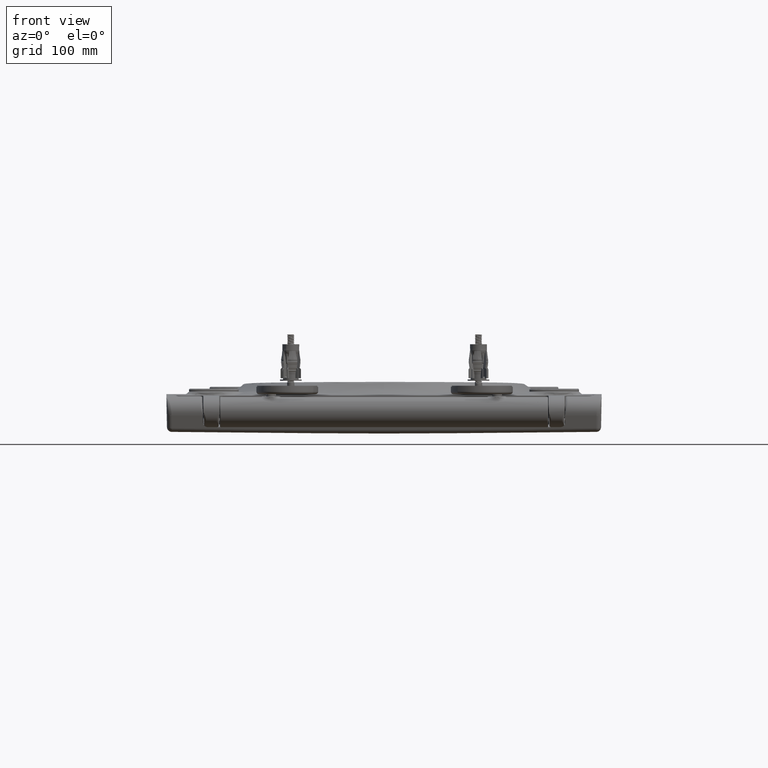
[diagram: clean part render]
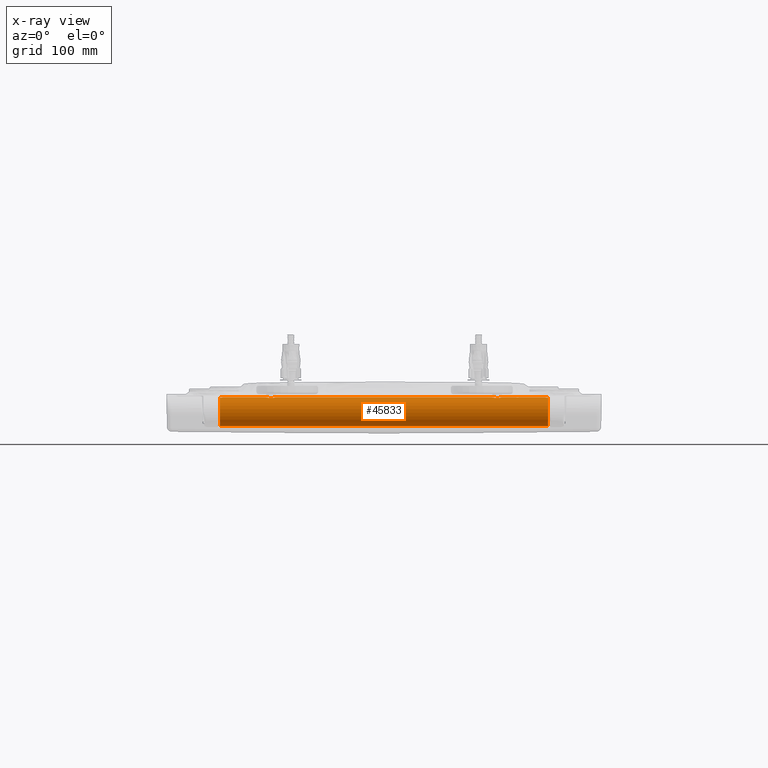
[diagram: x-ray — body ghosted, one internal face saturated and labeled with its STEP entity id]
A machine part, front view, then the same camera in x-ray: the body is ghosted and one INTERNAL B-rep face — a face not visible from any outside direction — is saturated and labeled: STEP entity #45833.
In plain terms, the highlighted cylindrical surface (edge-blend (fillet) strip) has radius 11.9295 mm, axis along (1, 0, 0).
Its self-contained STEP definition (entity closure, byte-faithful):
#43455=DIRECTION('',(1.E0,0.E0,0.E0));
#43456=VECTOR('',#43455,9.611882029927E-1);
#43457=CARTESIAN_POINT('',(1.34E2,-3.E0,1.154615547856E1));
#43458=LINE('',#43457,#43456);
#43464=DIRECTION('',(-1.E0,-1.764906298972E-10,0.E0));
#43465=VECTOR('',#43464,3.572046914858E1);
#43466=CARTESIAN_POINT('',(1.33E2,0.E0,1.192953085142E1));
#43467=LINE('',#43466,#43465);
#43468=DIRECTION('',(-1.E0,0.E0,0.E0));
#43469=VECTOR('',#43468,1.774409382972E2);
#43470=CARTESIAN_POINT('',(8.872046914858E1,6.304327192901E-9,
1.192953085142E1));
#43471=LINE('',#43470,#43469);
#43472=DIRECTION('',(-1.E0,1.764905959589E-10,0.E0));
#43473=VECTOR('',#43472,3.572046914858E1);
#43474=CARTESIAN_POINT('',(-9.727953085142E1,-6.304321917195E-9,
1.192953085142E1));
#43475=LINE('',#43474,#43473);
#43476=CARTESIAN_POINT('',(1.349697629439E2,-3.106847276581E0,
1.151786466039E1));
#43477=CARTESIAN_POINT('',(1.349832251915E2,-3.283182817039E0,
1.147029962904E1));
#43478=CARTESIAN_POINT('',(1.349978080939E2,-3.643632933991E0,
1.136439766071E1));
#43479=CARTESIAN_POINT('',(1.350006445086E2,-4.205154150023E0,
1.116931160649E1));
#43480=CARTESIAN_POINT('',(1.349997380909E2,-4.588617297475E0,
1.101376492177E1));
#43481=CARTESIAN_POINT('',(1.349997380909E2,-4.782352314404E0,
1.092898955421E1));
#43513=CARTESIAN_POINT('',(1.349997380909E2,0.E0,0.E0));
#43514=DIRECTION('',(1.E0,0.E0,0.E0));
#43515=DIRECTION('',(0.E0,-4.008835195588E-1,9.161290322581E-1));
#43516=AXIS2_PLACEMENT_3D('',#43513,#43514,#43515);
#43518=DIRECTION('',(-1.E0,0.E0,0.E0));
#43519=VECTOR('',#43518,2.699994761817E2);
#43520=CARTESIAN_POINT('',(1.349997380909E2,0.E0,-1.192953085142E1));
#43521=LINE('',#43520,#43519);
#43527=CARTESIAN_POINT('',(-1.349997380909E2,0.E0,0.E0));
#43528=DIRECTION('',(-1.E0,0.E0,0.E0));
#43529=DIRECTION('',(0.E0,0.E0,-1.E0));
#43530=AXIS2_PLACEMENT_3D('',#43527,#43528,#43529);
#43547=CARTESIAN_POINT('',(-1.349997380909E2,-4.782352314404E0,
1.092898955421E1));
#43548=CARTESIAN_POINT('',(-1.349997380909E2,-4.588617297475E0,
1.101376492177E1));
#43549=CARTESIAN_POINT('',(-1.350006445086E2,-4.205154150023E0,
1.116931160649E1));
#43550=CARTESIAN_POINT('',(-1.349978080939E2,-3.643632933991E0,
1.136439766071E1));
#43551=CARTESIAN_POINT('',(-1.349832251915E2,-3.283182817038E0,
1.147029962904E1));
#43552=CARTESIAN_POINT('',(-1.349697629439E2,-3.106847276581E0,
1.151786466039E1));
#43569=CARTESIAN_POINT('',(-1.349611882030E2,-3.E0,1.154615547856E1));
#43570=CARTESIAN_POINT('',(-1.349626914250E2,-3.017890473190E0,
1.154150705514E1));
#43571=CARTESIAN_POINT('',(-1.349656255702E2,-3.053588825893E0,
1.153214289193E1));
#43572=CARTESIAN_POINT('',(-1.349684097164E2,-3.089121997061E0,
1.152264590570E1));
#43573=CARTESIAN_POINT('',(-1.349697629439E2,-3.106847276581E0,
1.151786466039E1));
#43579=DIRECTION('',(1.E0,0.E0,0.E0));
#43580=VECTOR('',#43579,9.611882029927E-1);
#43581=CARTESIAN_POINT('',(-1.349611882030E2,-3.E0,1.154615547856E1));
#43582=LINE('',#43581,#43580);
#43592=CARTESIAN_POINT('',(-1.33E2,-2.E0,1.176068477322E1));
#43593=CARTESIAN_POINT('',(-1.33E2,-2.132173680931E0,1.173820756488E1));
#43594=CARTESIAN_POINT('',(-1.330527217288E2,-2.395233009780E0,
1.168867283356E1));
#43595=CARTESIAN_POINT('',(-1.332786759773E2,-2.730104765906E0,
1.161413265784E1));
#43596=CARTESIAN_POINT('',(-1.336128509867E2,-2.949782797428E0,
1.155938072093E1));
#43597=CARTESIAN_POINT('',(-1.338714321565E2,-3.E0,1.154615547856E1));
#43598=CARTESIAN_POINT('',(-1.34E2,-3.E0,1.154615547856E1));
#43613=CARTESIAN_POINT('',(-1.33E2,0.E0,0.E0));
#43614=DIRECTION('',(1.E0,0.E0,0.E0));
#43615=DIRECTION('',(0.E0,0.E0,1.E0));
#43616=AXIS2_PLACEMENT_3D('',#43613,#43614,#43615);
#43886=CARTESIAN_POINT('',(1.33E2,0.E0,0.E0));
#43887=DIRECTION('',(1.E0,0.E0,0.E0));
#43888=DIRECTION('',(0.E0,0.E0,1.E0));
#43889=AXIS2_PLACEMENT_3D('',#43886,#43887,#43888);
#43895=CARTESIAN_POINT('',(1.34E2,-3.E0,1.154615547856E1));
#43896=CARTESIAN_POINT('',(1.338714321565E2,-3.E0,1.154615547856E1));
#43897=CARTESIAN_POINT('',(1.336128509867E2,-2.949782797428E0,
1.155938072093E1));
#43898=CARTESIAN_POINT('',(1.332786759773E2,-2.730104765906E0,
1.161413265784E1));
#43899=CARTESIAN_POINT('',(1.330527217288E2,-2.395233009780E0,
1.168867283356E1));
#43900=CARTESIAN_POINT('',(1.33E2,-2.132173680931E0,1.173820756488E1));
#43901=CARTESIAN_POINT('',(1.33E2,-2.E0,1.176068477322E1));
#43945=CARTESIAN_POINT('',(1.349697629439E2,-3.106847276581E0,
1.151786466039E1));
#43946=CARTESIAN_POINT('',(1.349684097221E2,-3.089122071913E0,
1.152264588551E1));
#43947=CARTESIAN_POINT('',(1.349656255822E2,-3.053588975740E0,
1.153214285225E1));
#43948=CARTESIAN_POINT('',(1.349626914313E2,-3.017890548182E0,
1.154150703565E1));
#43949=CARTESIAN_POINT('',(1.349611882030E2,-3.E0,1.154615547856E1));
#44296=CARTESIAN_POINT('',(8.968657372726E1,-2.328885212947E0,1.17E1));
#44297=CARTESIAN_POINT('',(8.947372902971E1,-2.103929323782E0,
1.174477747383E1));
#44298=CARTESIAN_POINT('',(8.912055019570E1,-1.628789992632E0,
1.182656116827E1));
#44299=CARTESIAN_POINT('',(8.878658083236E1,-8.061637763373E-1,
1.191182176615E1));
#44300=CARTESIAN_POINT('',(8.872046914778E1,-2.708075679482E-1,
1.192953085142E1));
#44301=CARTESIAN_POINT('',(8.872046914858E1,6.304327192901E-9,
1.192953085142E1));
#44308=CARTESIAN_POINT('',(9.727953085142E1,-6.304323129487E-9,
1.192953085142E1));
#44309=CARTESIAN_POINT('',(9.727953085063E1,-2.703197359589E-1,
1.192953085142E1));
#44310=CARTESIAN_POINT('',(9.721375142797E1,-8.050360403108E-1,
1.191190844842E1));
#44311=CARTESIAN_POINT('',(9.687949993323E1,-1.628857413113E0,
1.182657124123E1));
#44312=CARTESIAN_POINT('',(9.652626651040E1,-2.103934037445E0,
1.174477653558E1));
#44313=CARTESIAN_POINT('',(9.631342627275E1,-2.328885212947E0,1.17E1));
#44324=CARTESIAN_POINT('',(9.631342627275E1,-2.328885212947E0,1.17E1));
#44325=CARTESIAN_POINT('',(9.609798428950E1,-2.635405741988E0,
1.163898708311E1));
#44326=CARTESIAN_POINT('',(9.558561442963E1,-3.183444282937E0,
1.150466026382E1));
#44327=CARTESIAN_POINT('',(9.462733170072E1,-3.763953333646E0,
1.132321447982E1));
#44328=CARTESIAN_POINT('',(9.355536258255E1,-4.062348519196E0,
1.121668468500E1));
#44329=CARTESIAN_POINT('',(9.244518292097E1,-4.062362234268E0,
1.121667578033E1));
#44330=CARTESIAN_POINT('',(9.137366672606E1,-3.764421667038E0,
1.132305922056E1));
#44331=CARTESIAN_POINT('',(9.041431788437E1,-3.183491610807E0,
1.150465590015E1));
#44332=CARTESIAN_POINT('',(8.990199907375E1,-2.635382072008E0,
1.163899179462E1));
#44333=CARTESIAN_POINT('',(8.968657372726E1,-2.328885212947E0,1.17E1));
#44721=CARTESIAN_POINT('',(-9.631342627274E1,-2.328885212947E0,1.17E1));
#44722=CARTESIAN_POINT('',(-9.652627096901E1,-2.103929325135E0,
1.174477747356E1));
#44723=CARTESIAN_POINT('',(-9.687944980139E1,-1.628789997703E0,
1.182656116763E1));
#44724=CARTESIAN_POINT('',(-9.721341916524E1,-8.061637821758E-1,
1.191182176533E1));
#44725=CARTESIAN_POINT('',(-9.727953085063E1,-2.708075856238E-1,
1.192953085142E1));
#44726=CARTESIAN_POINT('',(-9.727953085142E1,-6.304321917195E-9,
1.192953085142E1));
#44733=CARTESIAN_POINT('',(-8.872046914858E1,6.304326930855E-9,
1.192953085142E1));
#44734=CARTESIAN_POINT('',(-8.872046914778E1,-2.703197188690E-1,
1.192953085142E1));
#44735=CARTESIAN_POINT('',(-8.878624856997E1,-8.050360358268E-1,
1.191190844916E1));
#44736=CARTESIAN_POINT('',(-8.912050006439E1,-1.628857408854E0,
1.182657124175E1));
#44737=CARTESIAN_POINT('',(-8.947373348860E1,-2.103934036392E0,
1.174477653579E1));
#44738=CARTESIAN_POINT('',(-8.968657372725E1,-2.328885212947E0,1.17E1));
#44749=CARTESIAN_POINT('',(-8.968657372725E1,-2.328885212947E0,1.17E1));
#44750=CARTESIAN_POINT('',(-8.990214838382E1,-2.635594503223E0,
1.163894951019E1));
#44751=CARTESIAN_POINT('',(-9.041481299945E1,-3.183794102130E0,
1.150456105946E1));
#44752=CARTESIAN_POINT('',(-9.137293088611E1,-3.764036300957E0,
1.132318362717E1));
#44753=CARTESIAN_POINT('',(-9.244481968240E1,-4.062385086995E0,
1.121667178220E1));
#44754=CARTESIAN_POINT('',(-9.355524143458E1,-4.062326686427E0,
1.121668906317E1));
#44755=CARTESIAN_POINT('',(-9.462686609771E1,-3.764197475443E0,
1.132313679442E1));
#44756=CARTESIAN_POINT('',(-9.558606136500E1,-3.183154410620E0,
1.150474861782E1));
#44757=CARTESIAN_POINT('',(-9.609811800123E1,-2.635215503343E0,
1.163902495012E1));
#44758=CARTESIAN_POINT('',(-9.631342627274E1,-2.328885212947E0,1.17E1));
#44907=DIRECTION('',(1.E0,0.E0,0.E0));
#44908=VECTOR('',#44907,1.805459040182E0);
#44909=CARTESIAN_POINT('',(1.091375E2,-1.753198886339E0,1.18E1));
#44910=LINE('',#44909,#44908);
#44947=CARTESIAN_POINT('',(1.103770832986E2,-2.361701905727E-1,
1.192719287914E1));
#44948=CARTESIAN_POINT('',(1.105665968110E2,-7.442277294623E-1,
1.191713283844E1));
#44949=CARTESIAN_POINT('',(1.107552232109E2,-1.249907051612E0,
1.187477717662E1));
#44950=CARTESIAN_POINT('',(1.109429590402E2,-1.753198886339E0,1.18E1));
#44956=DIRECTION('',(1.E0,0.E0,0.E0));
#44957=VECTOR('',#44956,1.239583298600E0);
#44958=CARTESIAN_POINT('',(1.091375E2,-2.361701905727E-1,1.192719287914E1));
#44959=LINE('',#44958,#44957);
#44968=CARTESIAN_POINT('',(1.091375E2,0.E0,0.E0));
#44969=DIRECTION('',(1.E0,0.E0,0.E0));
#44970=DIRECTION('',(0.E0,-1.979710631659E-2,9.998040180863E-1));
#44971=AXIS2_PLACEMENT_3D('',#44968,#44969,#44970);
#45663=CARTESIAN_POINT('',(1.349997380909E2,0.E0,-1.192953085142E1));
#45665=VERTEX_POINT('',#45663);
#45667=CARTESIAN_POINT('',(1.349997380909E2,-4.782352314404E0,
1.092898955421E1));
#45668=VERTEX_POINT('',#45667);
#45674=VERTEX_POINT('',#43476);
#45675=VERTEX_POINT('',#44296);
#45676=VERTEX_POINT('',#44301);
#45677=VERTEX_POINT('',#44308);
#45678=VERTEX_POINT('',#44313);
#45681=VERTEX_POINT('',#44749);
#45682=VERTEX_POINT('',#44758);
#45683=VERTEX_POINT('',#44726);
#45684=VERTEX_POINT('',#44733);
#45692=CARTESIAN_POINT('',(-1.349997380909E2,0.E0,-1.192953085142E1));
#45694=VERTEX_POINT('',#45692);
#45696=CARTESIAN_POINT('',(-1.349997380909E2,-4.782352314404E0,
1.092898955421E1));
#45697=VERTEX_POINT('',#45696);
#45698=CARTESIAN_POINT('',(-1.349611882030E2,-3.E0,1.154615547856E1));
#45699=CARTESIAN_POINT('',(-1.34E2,-3.E0,1.154615547856E1));
#45700=VERTEX_POINT('',#45698);
#45701=VERTEX_POINT('',#45699);
#45702=VERTEX_POINT('',#43573);
#45703=VERTEX_POINT('',#43592);
#45705=CARTESIAN_POINT('',(-1.33E2,0.E0,1.192953085142E1));
#45707=VERTEX_POINT('',#45705);
#45718=CARTESIAN_POINT('',(1.34E2,-3.E0,1.154615547856E1));
#45719=CARTESIAN_POINT('',(1.349611882030E2,-3.E0,1.154615547856E1));
#45720=VERTEX_POINT('',#45718);
#45721=VERTEX_POINT('',#45719);
#45722=VERTEX_POINT('',#43901);
#45724=CARTESIAN_POINT('',(1.33E2,0.E0,1.192953085142E1));
#45726=VERTEX_POINT('',#45724);
#45727=CARTESIAN_POINT('',(1.091375E2,-1.753198886339E0,1.18E1));
#45728=CARTESIAN_POINT('',(1.109429590402E2,-1.753198886339E0,1.18E1));
#45729=VERTEX_POINT('',#45727);
#45730=VERTEX_POINT('',#45728);
#45731=CARTESIAN_POINT('',(1.091375E2,-2.361701905727E-1,1.192719287914E1));
#45732=CARTESIAN_POINT('',(1.103770832986E2,-2.361701905727E-1,
1.192719287914E1));
#45733=VERTEX_POINT('',#45731);
#45734=VERTEX_POINT('',#45732);
#45773=CARTESIAN_POINT('',(1.75E2,0.E0,0.E0));
#45774=DIRECTION('',(1.E0,0.E0,0.E0));
#45775=DIRECTION('',(0.E0,0.E0,-1.E0));
#45776=AXIS2_PLACEMENT_3D('',#45773,#45774,#45775);
#45777=CYLINDRICAL_SURFACE('',#45776,1.192953085142E1);
#45779=ORIENTED_EDGE('',*,*,#45778,.F.);
#45781=ORIENTED_EDGE('',*,*,#45780,.T.);
#45782=ORIENTED_EDGE('',*,*,#45762,.F.);
#45784=ORIENTED_EDGE('',*,*,#45783,.T.);
#45786=ORIENTED_EDGE('',*,*,#45785,.F.);
#45788=ORIENTED_EDGE('',*,*,#45787,.T.);
#45790=ORIENTED_EDGE('',*,*,#45789,.T.);
#45792=ORIENTED_EDGE('',*,*,#45791,.T.);
#45794=ORIENTED_EDGE('',*,*,#45793,.T.);
#45796=ORIENTED_EDGE('',*,*,#45795,.T.);
#45798=ORIENTED_EDGE('',*,*,#45797,.T.);
#45800=ORIENTED_EDGE('',*,*,#45799,.T.);
#45802=ORIENTED_EDGE('',*,*,#45801,.T.);
#45804=ORIENTED_EDGE('',*,*,#45803,.T.);
#45806=ORIENTED_EDGE('',*,*,#45805,.T.);
#45808=ORIENTED_EDGE('',*,*,#45807,.T.);
#45810=ORIENTED_EDGE('',*,*,#45809,.F.);
#45812=ORIENTED_EDGE('',*,*,#45811,.T.);
#45814=ORIENTED_EDGE('',*,*,#45813,.F.);
#45816=ORIENTED_EDGE('',*,*,#45815,.F.);
#45818=ORIENTED_EDGE('',*,*,#45817,.F.);
#45820=ORIENTED_EDGE('',*,*,#45819,.F.);
#45821=EDGE_LOOP('',(#45779,#45781,#45782,#45784,#45786,#45788,#45790,#45792,
#45794,#45796,#45798,#45800,#45802,#45804,#45806,#45808,#45810,#45812,#45814,
#45816,#45818,#45820));
#45822=FACE_OUTER_BOUND('',#45821,.F.);
#45824=ORIENTED_EDGE('',*,*,#45823,.F.);
#45826=ORIENTED_EDGE('',*,*,#45825,.F.);
#45828=ORIENTED_EDGE('',*,*,#45827,.T.);
#45830=ORIENTED_EDGE('',*,*,#45829,.T.);
#45831=EDGE_LOOP('',(#45824,#45826,#45828,#45830));
#45832=FACE_BOUND('',#45831,.F.);
#43482=B_SPLINE_CURVE_WITH_KNOTS('',3,(#43476,#43477,#43478,#43479,#43480,
#43481),.UNSPECIFIED.,.F.,.F.,(4,1,1,4),(0.E0,3.333333333333E-1,
6.666666666667E-1,1.E0),.UNSPECIFIED.);
#43517=CIRCLE('',#43516,1.192953085142E1);
#43531=CIRCLE('',#43530,1.192953085142E1);
#43553=B_SPLINE_CURVE_WITH_KNOTS('',3,(#43547,#43548,#43549,#43550,#43551,
#43552),.UNSPECIFIED.,.F.,.F.,(4,1,1,4),(0.E0,3.333333333333E-1,
6.666666666667E-1,1.E0),.UNSPECIFIED.);
#43574=B_SPLINE_CURVE_WITH_KNOTS('',3,(#43569,#43570,#43571,#43572,#43573),
.UNSPECIFIED.,.F.,.F.,(4,1,4),(0.E0,5.E-1,1.E0),.UNSPECIFIED.);
#43599=B_SPLINE_CURVE_WITH_KNOTS('',3,(#43592,#43593,#43594,#43595,#43596,
#43597,#43598),.UNSPECIFIED.,.F.,.F.,(4,1,1,1,4),(0.E0,2.5E-1,5.E-1,7.5E-1,
1.E0),.UNSPECIFIED.);
#43617=CIRCLE('',#43616,1.192953085142E1);
#43890=CIRCLE('',#43889,1.192953085142E1);
#43902=B_SPLINE_CURVE_WITH_KNOTS('',3,(#43895,#43896,#43897,#43898,#43899,
#43900,#43901),.UNSPECIFIED.,.F.,.F.,(4,1,1,1,4),(0.E0,2.5E-1,5.E-1,7.5E-1,
1.E0),.UNSPECIFIED.);
#43950=B_SPLINE_CURVE_WITH_KNOTS('',3,(#43945,#43946,#43947,#43948,#43949),
.UNSPECIFIED.,.F.,.F.,(4,1,4),(0.E0,5.E-1,1.E0),.UNSPECIFIED.);
#44302=B_SPLINE_CURVE_WITH_KNOTS('',3,(#44296,#44297,#44298,#44299,#44300,
#44301),.UNSPECIFIED.,.F.,.F.,(4,1,1,4),(0.E0,3.333333333333E-1,
6.666666666667E-1,1.E0),.UNSPECIFIED.);
#44314=B_SPLINE_CURVE_WITH_KNOTS('',3,(#44308,#44309,#44310,#44311,#44312,
#44313),.UNSPECIFIED.,.F.,.F.,(4,1,1,4),(0.E0,3.333333333333E-1,
6.666666666667E-1,1.E0),.UNSPECIFIED.);
#44334=B_SPLINE_CURVE_WITH_KNOTS('',3,(#44324,#44325,#44326,#44327,#44328,
#44329,#44330,#44331,#44332,#44333),.UNSPECIFIED.,.F.,.F.,(4,1,1,1,1,1,1,4),(
0.E0,1.428571428571E-1,2.857142857143E-1,4.285714285714E-1,5.714285714286E-1,
7.142857142857E-1,8.571428571429E-1,1.E0),.UNSPECIFIED.);
#44727=B_SPLINE_CURVE_WITH_KNOTS('',3,(#44721,#44722,#44723,#44724,#44725,
#44726),.UNSPECIFIED.,.F.,.F.,(4,1,1,4),(0.E0,3.333333333333E-1,
6.666666666667E-1,1.E0),.UNSPECIFIED.);
#44739=B_SPLINE_CURVE_WITH_KNOTS('',3,(#44733,#44734,#44735,#44736,#44737,
#44738),.UNSPECIFIED.,.F.,.F.,(4,1,1,4),(0.E0,3.333333333333E-1,
6.666666666667E-1,1.E0),.UNSPECIFIED.);
#44759=B_SPLINE_CURVE_WITH_KNOTS('',3,(#44749,#44750,#44751,#44752,#44753,
#44754,#44755,#44756,#44757,#44758),.UNSPECIFIED.,.F.,.F.,(4,1,1,1,1,1,1,4),(
0.E0,1.428571428571E-1,2.857142857143E-1,4.285714285714E-1,5.714285714286E-1,
7.142857142857E-1,8.571428571429E-1,1.E0),.UNSPECIFIED.);
#44951=B_SPLINE_CURVE_WITH_KNOTS('',3,(#44947,#44948,#44949,#44950),
.UNSPECIFIED.,.F.,.F.,(4,4),(0.E0,1.E0),.UNSPECIFIED.);
#44972=CIRCLE('',#44971,1.192953085142E1);
#45762=EDGE_CURVE('',#45720,#45721,#43458,.T.);
#45778=EDGE_CURVE('',#45674,#45668,#43482,.T.);
#45780=EDGE_CURVE('',#45674,#45721,#43950,.T.);
#45783=EDGE_CURVE('',#45720,#45722,#43902,.T.);
#45785=EDGE_CURVE('',#45726,#45722,#43890,.T.);
#45787=EDGE_CURVE('',#45726,#45677,#43467,.T.);
#45789=EDGE_CURVE('',#45677,#45678,#44314,.T.);
#45791=EDGE_CURVE('',#45678,#45675,#44334,.T.);
#45793=EDGE_CURVE('',#45675,#45676,#44302,.T.);
#45795=EDGE_CURVE('',#45676,#45684,#43471,.T.);
#45797=EDGE_CURVE('',#45684,#45681,#44739,.T.);
#45799=EDGE_CURVE('',#45681,#45682,#44759,.T.);
#45801=EDGE_CURVE('',#45682,#45683,#44727,.T.);
#45803=EDGE_CURVE('',#45683,#45707,#43475,.T.);
#45805=EDGE_CURVE('',#45707,#45703,#43617,.T.);
#45807=EDGE_CURVE('',#45703,#45701,#43599,.T.);
#45809=EDGE_CURVE('',#45700,#45701,#43582,.T.);
#45811=EDGE_CURVE('',#45700,#45702,#43574,.T.);
#45813=EDGE_CURVE('',#45697,#45702,#43553,.T.);
#45815=EDGE_CURVE('',#45694,#45697,#43531,.T.);
#45817=EDGE_CURVE('',#45665,#45694,#43521,.T.);
#45819=EDGE_CURVE('',#45668,#45665,#43517,.T.);
#45823=EDGE_CURVE('',#45729,#45730,#44910,.T.);
#45825=EDGE_CURVE('',#45733,#45729,#44972,.T.);
#45827=EDGE_CURVE('',#45733,#45734,#44959,.T.);
#45829=EDGE_CURVE('',#45734,#45730,#44951,.T.);
#45833=ADVANCED_FACE('',(#45822,#45832),#45777,.F.);